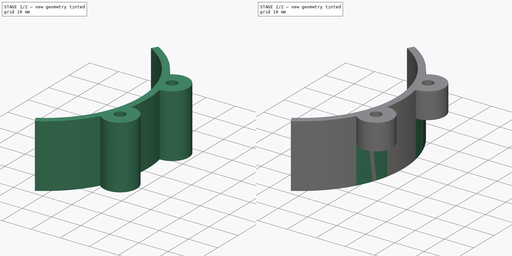
[diagram: build sequence overview — one tinted view per stage of 2, left to right]
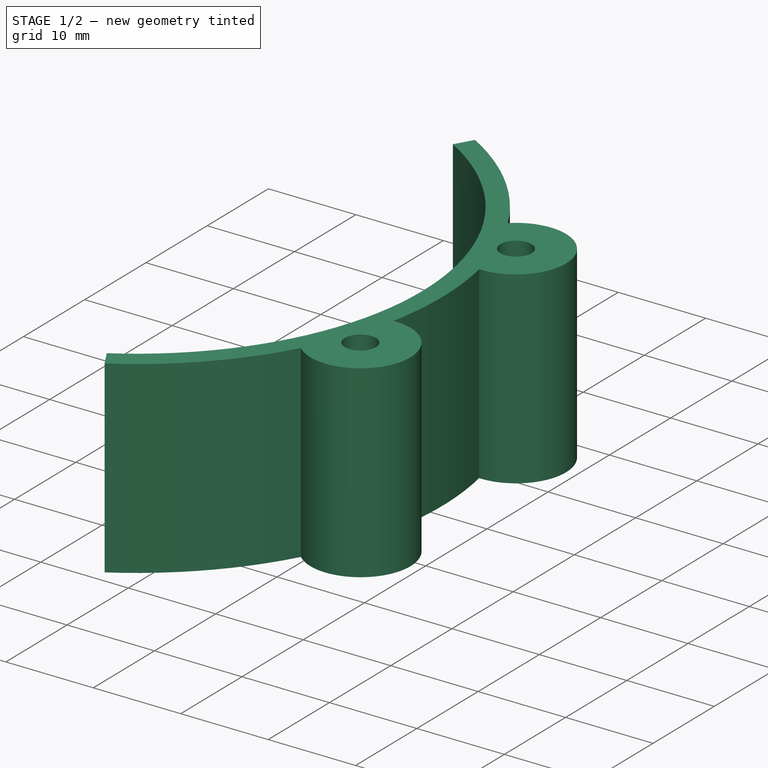
[diagram: stage 1 of 2 — iso view after this stage's code; geometry added in this stage tinted green]
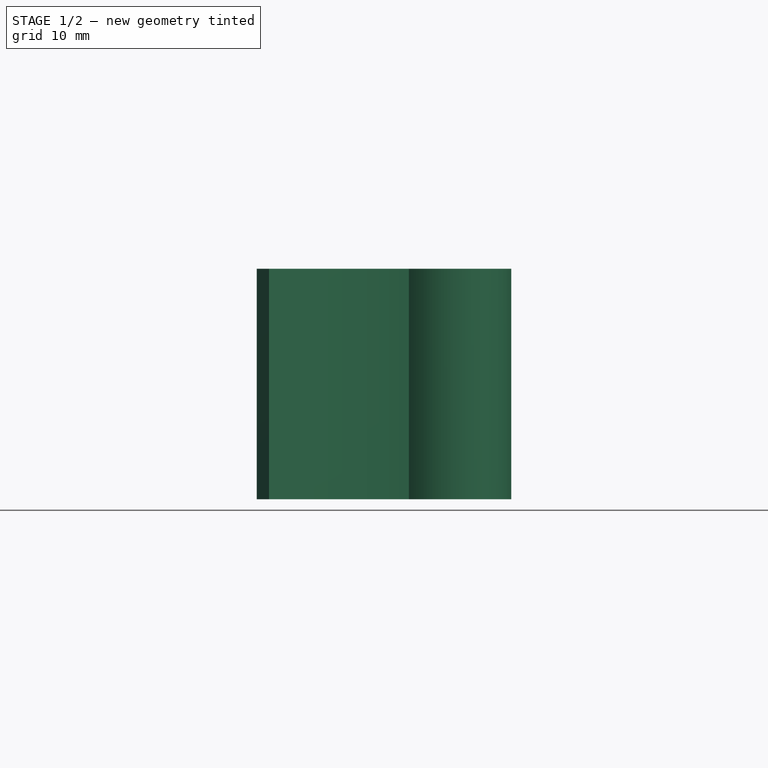
[diagram: stage 1 of 2 — front view after this stage's code; geometry added in this stage tinted green]
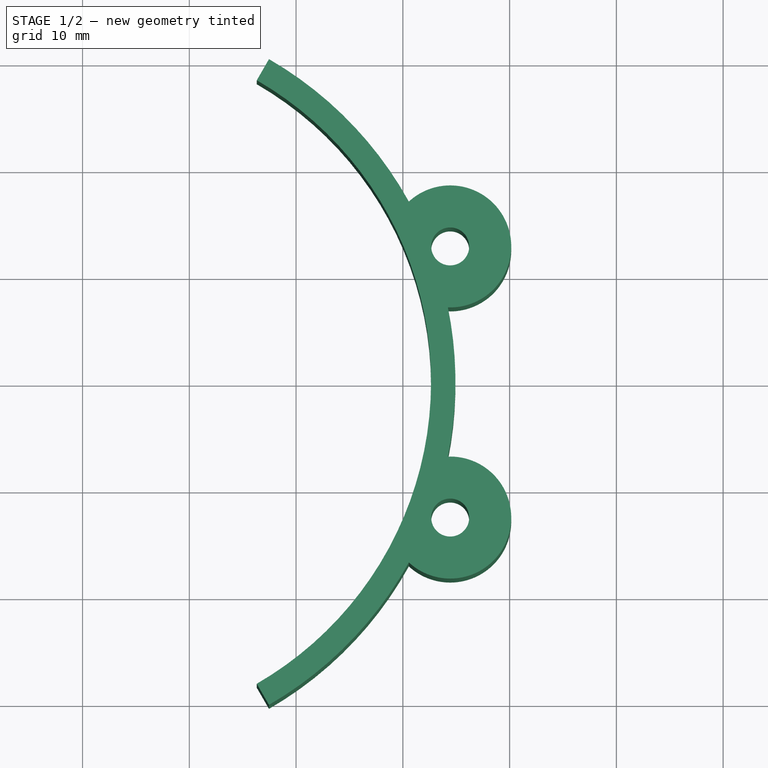
[diagram: stage 1 of 2 — top view after this stage's code; geometry added in this stage tinted green]
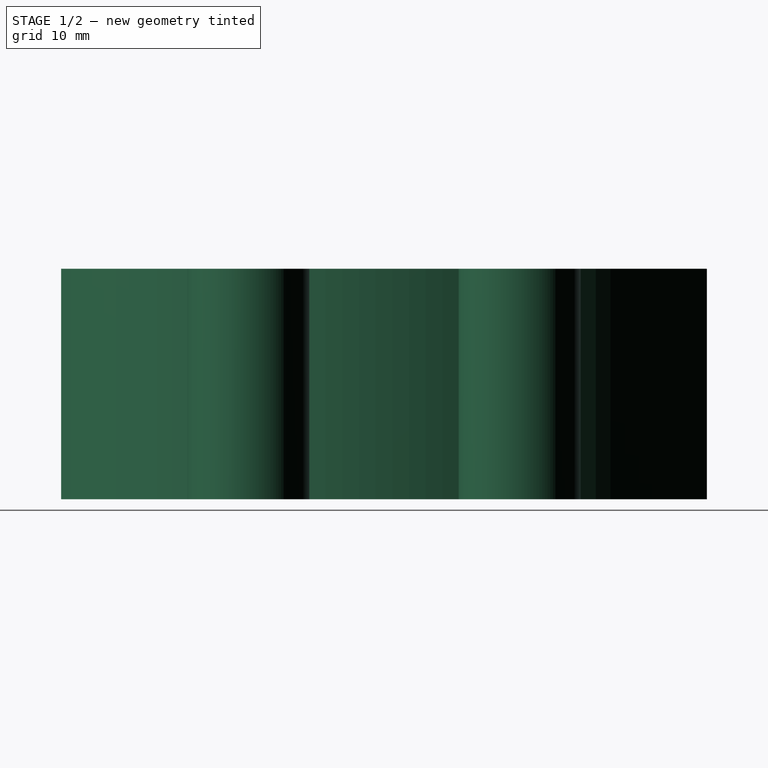
[diagram: stage 1 of 2 — right view after this stage's code; geometry added in this stage tinted green]
FCSTD DOCUMENT  (FreeCAD 0.20R29410 (Git))
Label: air deflector
License: All rights reserved
LicenseURL: http://en.wikipedia.org/wiki/All_rights_reserved
objects: Sketcher::SketchObject×2, PartDesign::Pad×1, PartDesign::Pocket×1, PartDesign::Body×1
note: 7 computed .brp shape members not serialized (recipe doc carries the construction recipe); baked Part::Feature solids carry a one-line shape summary decoded from their .brp

FEATURE [Sketcher::SketchObject] Sketch
  FullyConstrained = true
  MapMode = 5
  Support = -> [XY_Plane]
  sketch-geometry (14):
    g0: ArcOfCircle CenterX=0 CenterY=0 CenterZ=0 NormalX=0 NormalY=0 NormalZ=1 AngleXU=0 Radius=32.639 StartAngle=5.23599 EndAngle=7.33038
    g1: ArcOfCircle CenterX=0 CenterY=0 CenterZ=0 NormalX=0 NormalY=0 NormalZ=1 AngleXU=0 Radius=34.925 StartAngle=5.23599 EndAngle=7.33038
    g2: LineSegment StartX=0 StartY=0 StartZ=0 EndX=17.4625 EndY=30.2459 EndZ=0
    g3: LineSegment StartX=0 StartY=0 StartZ=0 EndX=17.4625 EndY=-30.2459 EndZ=0
    g4: LineSegment StartX=16.3195 StartY=28.2662 StartZ=0 EndX=17.4625 EndY=30.2459 EndZ=0
    g5: LineSegment StartX=16.3195 StartY=-28.2662 StartZ=0 EndX=17.4625 EndY=-30.2459 EndZ=0
    g6: Circle CenterX=34.4357 CenterY=12.7 CenterZ=0 NormalX=0 NormalY=0 NormalZ=1 AngleXU=0 Radius=1.778
    g7: Circle CenterX=34.4357 CenterY=-12.7 CenterZ=0 NormalX=0 NormalY=0 NormalZ=1 AngleXU=0 Radius=1.778
    g8: LineSegment StartX=34.4357 StartY=12.7 StartZ=0 EndX=34.4357 EndY=-12.7 EndZ=0
    g9: ArcOfCircle CenterX=34.4357 CenterY=12.7 CenterZ=0 NormalX=0 NormalY=0 NormalZ=1 AngleXU=0 Radius=5.715 StartAngle=4.67437 EndAngle=8.59865
    g10: ArcOfCircle CenterX=34.4357 CenterY=-12.7 CenterZ=0 NormalX=0 NormalY=0 NormalZ=1 AngleXU=0 Radius=5.715 StartAngle=3.96772 EndAngle=7.892
    g11: ArcOfCircle CenterX=0 CenterY=0 CenterZ=0 NormalX=0 NormalY=0 NormalZ=1 AngleXU=0 Radius=34.925 StartAngle=0.505174 EndAngle=1.0472
    g12: ArcOfCircle CenterX=0 CenterY=0 CenterZ=0 NormalX=0 NormalY=0 NormalZ=1 AngleXU=0 Radius=34.925 StartAngle=6.08171 EndAngle=6.48466
    g13: ArcOfCircle CenterX=0 CenterY=0 CenterZ=0 NormalX=0 NormalY=0 NormalZ=1 AngleXU=0 Radius=34.925 StartAngle=5.23599 EndAngle=5.77801
  constraints (38):
    c: Coincident(g0,g-1)
    c: Diameter(g0) = 65.278
    c: Coincident(g1,g0)
    c: Diameter(g1) = 69.85
    c: Coincident(g2,g0)
    c: Coincident(g2,g1)
    c: Coincident(g3,g0)
    c: Coincident(g3,g1)
    c: PointOnObject(g0,g2)
    c: PointOnObject(g0,g3)
    c: Coincident(g4,g0)
    c: Coincident(g4,g1)
    c: Coincident(g5,g0)
    c: Coincident(g5,g1)
    c: Angle(g2,g-2) = 0.523599
    c: Angle(g3,g-2) = 2.61799
    c: Tangent(g6,g1)
    c: Tangent(g7,g1)
    c: Equal(g6,g7)
    c: DistanceY(g7,g6) = 25.4
    c: Coincident(g8,g6)
    c: Coincident(g8,g7)
    c: Vertical(g8)
    c: Diameter(g6) = 3.556
    c: Coincident(g9,g6)
    c: PointOnObject(g9,g1)
    c: Coincident(g10,g7)
    c: Equal(g10,g9)
    c: Coincident(g11,g0)
    c: Coincident(g11,g4)
    c: Coincident(g11,g9)
    c: Coincident(g12,g0)
    c: Coincident(g12,g9)
    c: Coincident(g12,g10)
    c: Coincident(g13,g0)
    c: Coincident(g13,g10)
    c: Coincident(g13,g5)
    c: Diameter(g9) = 11.43
FEATURE [PartDesign::Pad] Pad
  Direction = (0,0,1)
  Length = 21.59
  Length2 = 10
  Profile = -> Sketch
  ReferenceAxis = -> Sketch [N_Axis]
  Type = 0
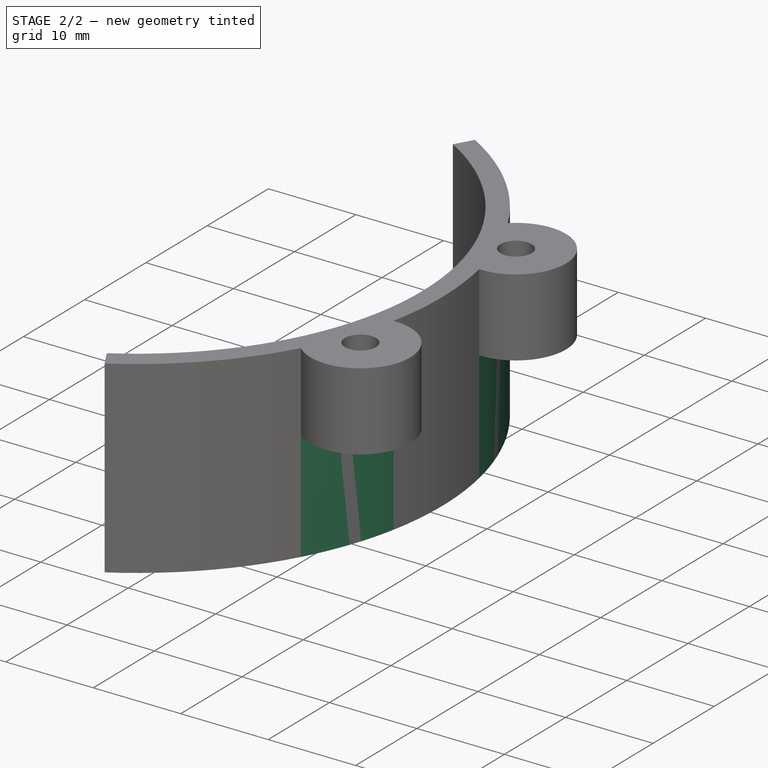
[diagram: stage 2 of 2 — iso view after this stage's code; geometry added in this stage tinted green]
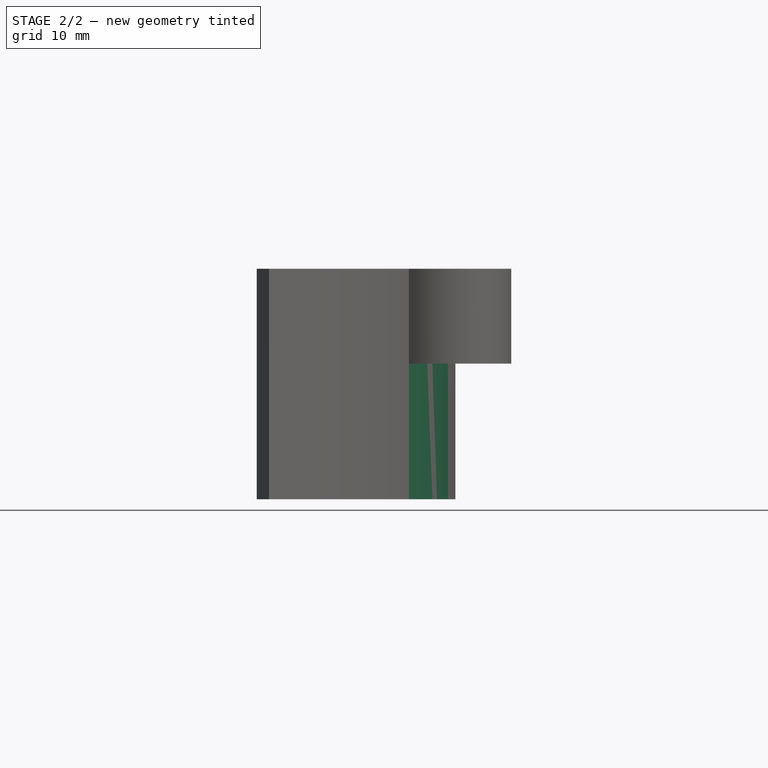
[diagram: stage 2 of 2 — front view after this stage's code; geometry added in this stage tinted green]
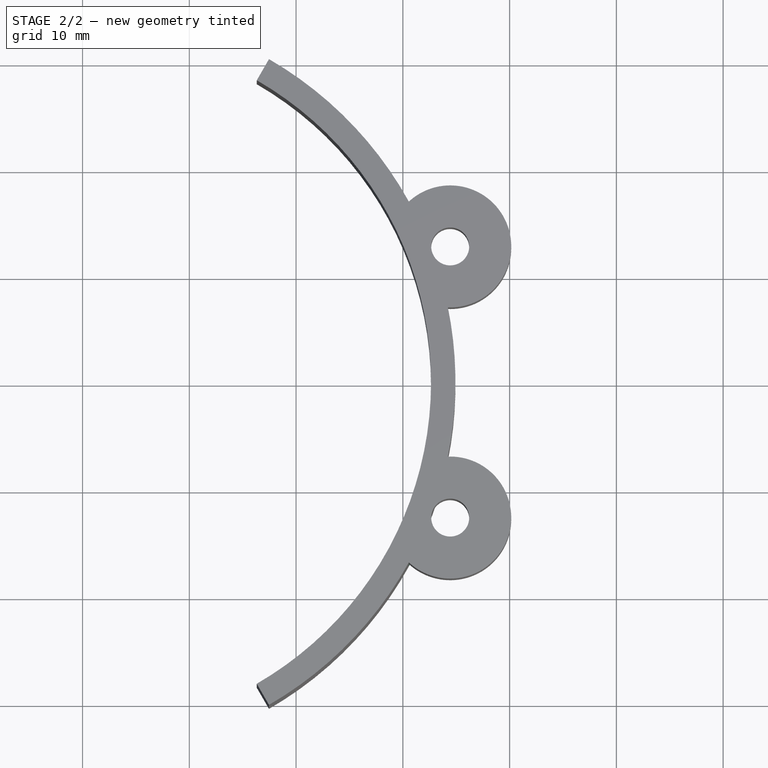
[diagram: stage 2 of 2 — top view after this stage's code; geometry added in this stage tinted green]
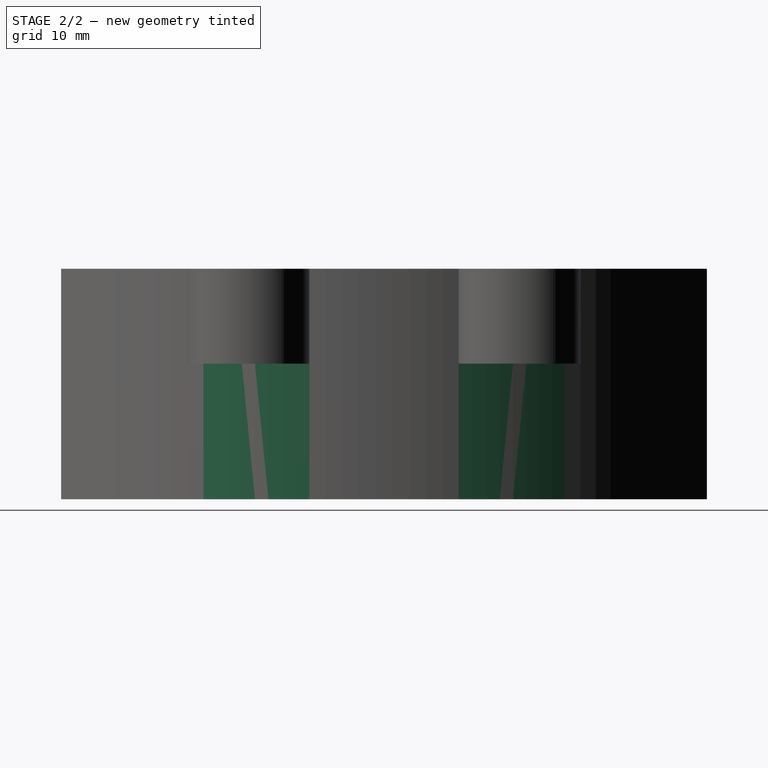
[diagram: stage 2 of 2 — right view after this stage's code; geometry added in this stage tinted green]
FEATURE [Sketcher::SketchObject] Sketch001
  FullyConstrained = true
  MapMode = 5
  Support = -> [XY_Plane]
  expr: Constraints[14] = Sketch.Constraints[14]
  expr: Constraints[15] = Sketch.Constraints[15]
  expr: Constraints[19] = Sketch.Constraints[19]
  expr: Constraints[1] = Sketch.Constraints[1]
  expr: Constraints[23] = Sketch.Constraints[23]
  expr: Constraints[3] = Sketch.Constraints[3]
  sketch-geometry (16):
    g0: ArcOfCircle CenterX=0 CenterY=0 CenterZ=0 NormalX=0 NormalY=0 NormalZ=1 AngleXU=0 Radius=32.639 StartAngle=5.23599 EndAngle=7.33038
    g1: ArcOfCircle CenterX=0 CenterY=0 CenterZ=0 NormalX=0 NormalY=0 NormalZ=1 AngleXU=0 Radius=34.925 StartAngle=5.23599 EndAngle=7.33038
    g2: LineSegment StartX=0 StartY=0 StartZ=0 EndX=17.4625 EndY=30.2459 EndZ=0
    g3: LineSegment StartX=0 StartY=0 StartZ=0 EndX=17.4625 EndY=-30.2459 EndZ=0
    g4: LineSegment StartX=16.3195 StartY=28.2662 StartZ=0 EndX=17.4625 EndY=30.2459 EndZ=0
    g5: LineSegment StartX=16.3195 StartY=-28.2662 StartZ=0 EndX=17.4625 EndY=-30.2459 EndZ=0
    g6: Circle CenterX=34.4357 CenterY=12.7 CenterZ=0 NormalX=0 NormalY=0 NormalZ=1 AngleXU=0 Radius=1.778
    g7: Circle CenterX=34.4357 CenterY=-12.7 CenterZ=0 NormalX=0 NormalY=0 NormalZ=1 AngleXU=0 Radius=1.778
    g8: LineSegment StartX=34.4357 StartY=12.7 StartZ=0 EndX=34.4357 EndY=-12.7 EndZ=0
    g9: ArcOfCircle CenterX=34.4357 CenterY=12.7 CenterZ=0 NormalX=0 NormalY=0 NormalZ=1 AngleXU=0 Radius=5.715 StartAngle=4.67437 EndAngle=8.59865
    g10: ArcOfCircle CenterX=34.4357 CenterY=-12.7 CenterZ=0 NormalX=0 NormalY=0 NormalZ=1 AngleXU=0 Radius=5.715 StartAngle=3.96772 EndAngle=7.892
    g11: ArcOfCircle CenterX=0 CenterY=0 CenterZ=0 NormalX=0 NormalY=0 NormalZ=1 AngleXU=0 Radius=34.925 StartAngle=0.505174 EndAngle=1.0472
    g12: ArcOfCircle CenterX=0 CenterY=0 CenterZ=0 NormalX=0 NormalY=0 NormalZ=1 AngleXU=0 Radius=34.925 StartAngle=6.08171 EndAngle=6.48466
    g13: ArcOfCircle CenterX=0 CenterY=0 CenterZ=0 NormalX=0 NormalY=0 NormalZ=1 AngleXU=0 Radius=34.925 StartAngle=5.23599 EndAngle=5.77801
    g14: ArcOfCircle CenterX=0 CenterY=0 CenterZ=0 NormalX=0 NormalY=0 NormalZ=1 AngleXU=0 Radius=34.925 StartAngle=0.201479 EndAngle=0.505174
    g15: ArcOfCircle CenterX=0 CenterY=0 CenterZ=0 NormalX=0 NormalY=0 NormalZ=1 AngleXU=0 Radius=34.925 StartAngle=5.77801 EndAngle=6.08171
  constraints (43):
    c: Coincident(g0,g-1)
    c: Diameter(g0) = 65.278
    c: Coincident(g1,g0)
    c: Diameter(g1) = 69.85
    c: Coincident(g2,g0)
    c: Coincident(g2,g1)
    c: Coincident(g3,g0)
    c: Coincident(g3,g1)
    c: PointOnObject(g0,g2)
    c: PointOnObject(g0,g3)
    c: Coincident(g4,g0)
    c: Coincident(g4,g1)
    c: Coincident(g5,g0)
    c: Coincident(g5,g1)
    c: Angle(g2,g-2) = 0.523599
    c: Angle(g3,g-2) = 2.61799
    c: Tangent(g6,g1)
    c: Tangent(g7,g1)
    c: Equal(g6,g7)
    c: DistanceY(g7,g6) = 25.4
    c: Coincident(g8,g6)
    c: Coincident(g8,g7)
    c: Vertical(g8)
    c: Diameter(g6) = 3.556
    c: Coincident(g9,g6)
    c: Coincident(g10,g7)
    c: Equal(g10,g9)
    c: Coincident(g11,g0)
    c: Coincident(g11,g4)
    c: Coincident(g11,g9)
    c: Coincident(g12,g0)
    c: Coincident(g12,g9)
    c: Coincident(g12,g10)
    c: Coincident(g13,g0)
    c: Coincident(g13,g10)
    c: Coincident(g13,g5)
    c: Coincident(g14,g0)
    c: Coincident(g14,g9)
    c: Coincident(g14,g9)
    c: Coincident(g15,g14)
    c: Coincident(g15,g10)
    c: Coincident(g15,g10)
    c: Diameter(g9) = 11.43
FEATURE [PartDesign::Pocket] Pocket
  BaseFeature = -> Pad
  Direction = (0,0,-1)
  Length = 12.7
  Length2 = 5
  Profile = -> Sketch001
  ReferenceAxis = -> Sketch001 [N_Axis]
  Reversed = true
  Type = 0
FEATURE [PartDesign::Body] Body
  Group = -> [Sketch,Pad,Sketch001,Pocket]
  Origin = -> Origin
  Tip = -> Pocket
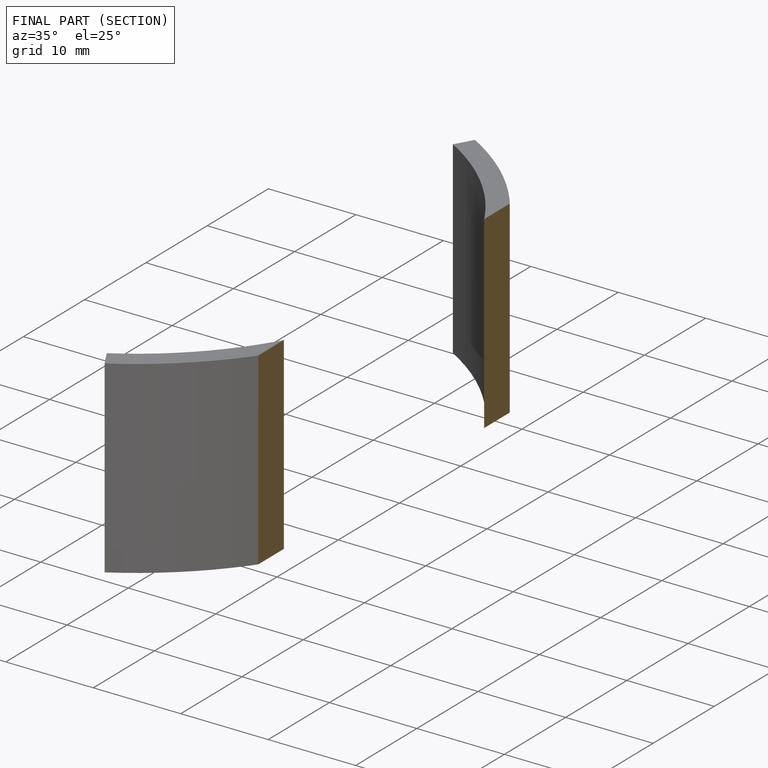
[diagram: finished part — half-section view (interior)]
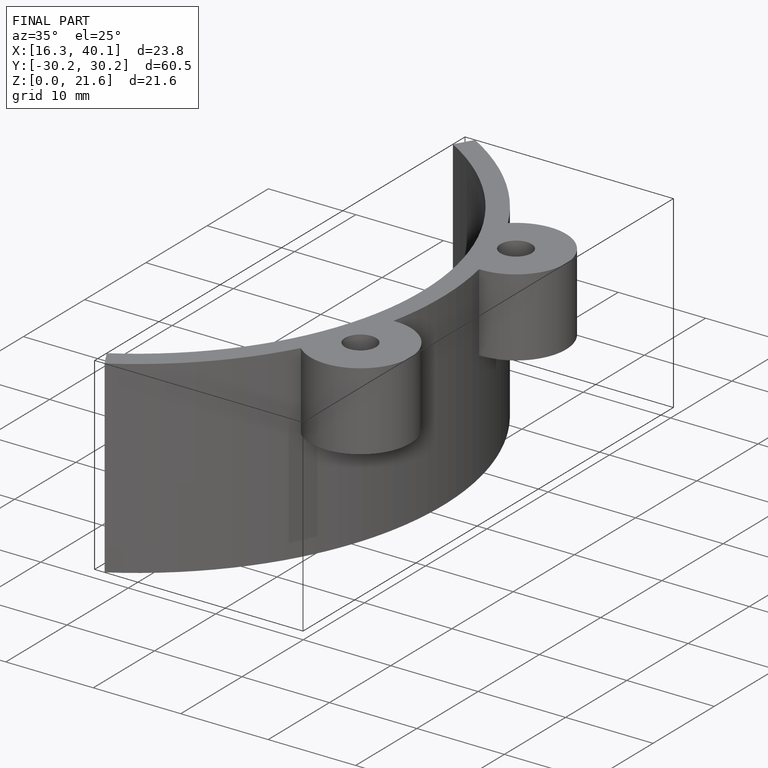
[diagram: finished part — iso view with bounding-box wireframe]
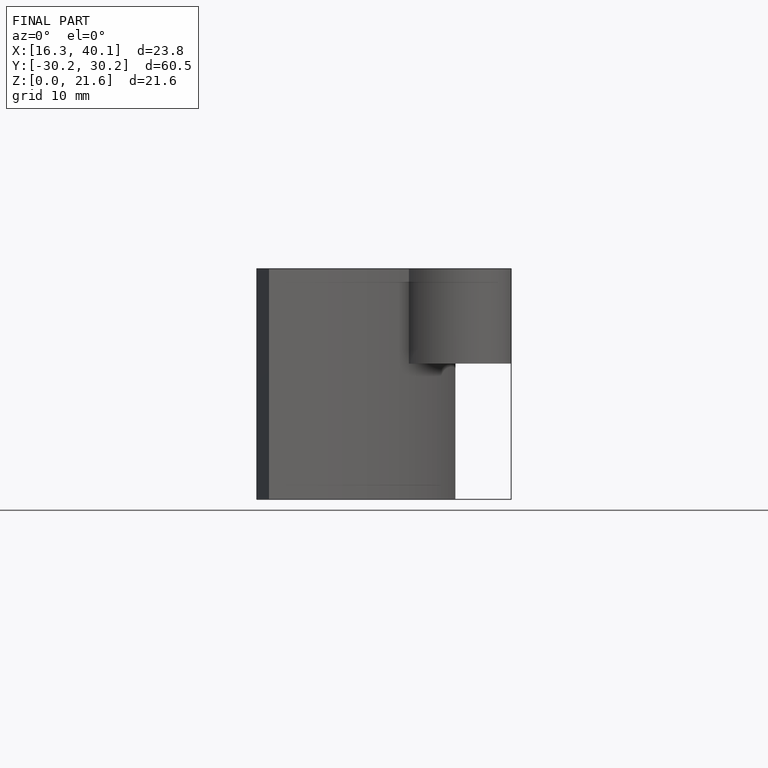
[diagram: finished part — front view with bounding-box wireframe]
